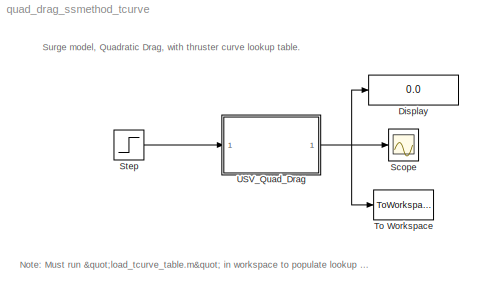
MODEL quad_drag_ssmethod_tcurve
KIND model
BLOCK [Display] Display
  Decimation = 1
  Format = long
  Ports = [1]
  SID = 35
BLOCK [Scope] Scope
  Ports = [1]
  SID = 15
  ScopeSpecificationString = Simulink.scopes.TimeScopeBlockCfg('CurrentConfiguration', extmgr.ConfigurationSet(extmgr.Configuration('Core','General UI',true),extmgr.Configuration('Core','Source UI',true),extmgr.Configuration('Sources','WiredSimulink',true),extmgr.Configuration('Visuals','Time Domain',true,'SerializedDisplays',{struct('MinYLimReal','-0.11698','MaxYLimReal','1.05279','YLabelReal','','MinYLimMag','0.00000','MaxY...<+1363ch>
BLOCK [Step] Step
  After = .4
  SID = 14
  SampleTime = 0
BLOCK [ToWorkspace] To Workspace
  FixptAsFi = on
  MaxDataPoints = inf
  Ports = [1]
  SID = 34
  SampleTime = -1
  Save2DSignal = 3-D array (concatenate along third dimension)
  SaveFormat = Timeseries
  VariableName = vel
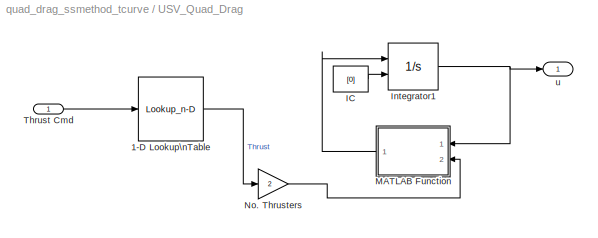
BLOCK [SubSystem] USV_Quad_Drag
  Ports = [1, 1]
  RequestExecContextInheritance = off
  SID = 8
  Variant = off
BLOCK [Lookup_n-D] USV_Quad_Drag/1-D Lookup\nTable
  BreakpointsForDimension1 = breakpoints1
  ExtrapMethod = Clip
  InternalRulePriority = Speed
  NumberOfTableDimensions = 1
  Ports = [1, 1]
  RndMeth = Simplest
  SID = 31
  Table = table_data
  UseLastTableValue = on
BLOCK [Constant] USV_Quad_Drag/IC
  SID = 28
  Value = [0]
BLOCK [Integrator] USV_Quad_Drag/Integrator1
  InitialConditionSource = external
  Ports = [2, 1]
  SID = 27
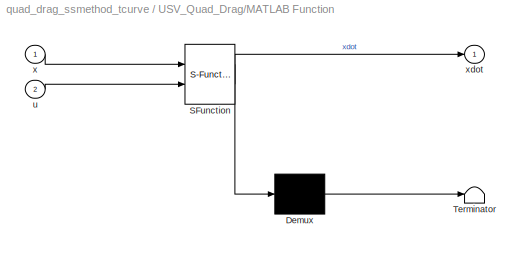
BLOCK [SubSystem] USV_Quad_Drag/MATLAB Function
  ErrorFcn = Stateflow.Translate.translate
  PermitHierarchicalResolution = ExplicitOnly
  Ports = [2, 1]
  RequestExecContextInheritance = off
  SFBlockType = MATLAB Function
  SID = 25
  TreatAsAtomicUnit = on
  Variant = off
BLOCK [Demux] USV_Quad_Drag/MATLAB Function/ Demux 
  Outputs = 1
  Ports = [1, 1]
  SID = 25::17
BLOCK [S-Function] USV_Quad_Drag/MATLAB Function/ SFunction 
  EnableBusSupport = on
  FunctionName = sf_sfun
  PortCounts = [2 2]
  Ports = [2, 2]
  SFunctionDeploymentMode = off
  SID = 25::16
  Tag = Stateflow S-Function quad_drag_ssmethod_tcurve 2
BLOCK [Terminator] USV_Quad_Drag/MATLAB Function/ Terminator 
  SID = 25::18
BLOCK [Inport] USV_Quad_Drag/MATLAB Function/u
  IconDisplay = Port number
  Port = 2
  SID = 25::1
BLOCK [Inport] USV_Quad_Drag/MATLAB Function/x
  IconDisplay = Port number
  SID = 25::19
BLOCK [Outport] USV_Quad_Drag/MATLAB Function/xdot
  IconDisplay = Port number
  SID = 25::5
BLOCK [Gain] USV_Quad_Drag/No. Thrusters
  Gain = 2
  OutDataTypeStr = Inherit: Inherit via internal rule
  ParamDataTypeStr = Inherit: Inherit via internal rule
  SID = 32
  SaturateOnIntegerOverflow = off
BLOCK [Inport] USV_Quad_Drag/Thrust Cmd
  IconDisplay = Port number
  SID = 9
BLOCK [Outport] USV_Quad_Drag/u
  IconDisplay = Port number
  SID = 10
ANNOTATION (root): \n \n Note: Must run "load_tcurve_table.m" in workspace to populate lookup table!
ANNOTATION (root): Surge model, Quadratic Drag, with thruster curve lookup table.
LINE Step:1 -> USV_Quad_Drag:1
LINE USV_Quad_Drag/1-D Lookup\nTable:1 -> USV_Quad_Drag/No. Thrusters:1
LINE USV_Quad_Drag/IC:1 -> USV_Quad_Drag/Integrator1:2
NET USV_Quad_Drag/Integrator1:1 -> USV_Quad_Drag/MATLAB Function:1, USV_Quad_Drag/u:1
LINE USV_Quad_Drag/MATLAB Function/ Demux :1 -> USV_Quad_Drag/MATLAB Function/ Terminator :1
LINE USV_Quad_Drag/MATLAB Function/ SFunction :1 -> USV_Quad_Drag/MATLAB Function/ Demux :1
LINE USV_Quad_Drag/MATLAB Function/ SFunction :2 -> USV_Quad_Drag/MATLAB Function/xdot:1
LINE USV_Quad_Drag/MATLAB Function/u:1 -> USV_Quad_Drag/MATLAB Function/ SFunction :2
LINE USV_Quad_Drag/MATLAB Function/x:1 -> USV_Quad_Drag/MATLAB Function/ SFunction :1
LINE USV_Quad_Drag/MATLAB Function:1 -> USV_Quad_Drag/Integrator1:1
LINE USV_Quad_Drag/No. Thrusters:1 -> USV_Quad_Drag/MATLAB Function:2
LINE USV_Quad_Drag/Thrust Cmd:1 -> USV_Quad_Drag/1-D Lookup\nTable:1
NET USV_Quad_Drag:1 -> Display:1, Scope:1, To Workspace:1
note: NET lines group one-source signal fan-out (src -> all destinations, sorted); 1:1 wires keep LINE
CHART USV_Quad_Drag/MATLAB Function states=1 transitions=1
  STATE_LABEL 'eML_blk_kernel()'
